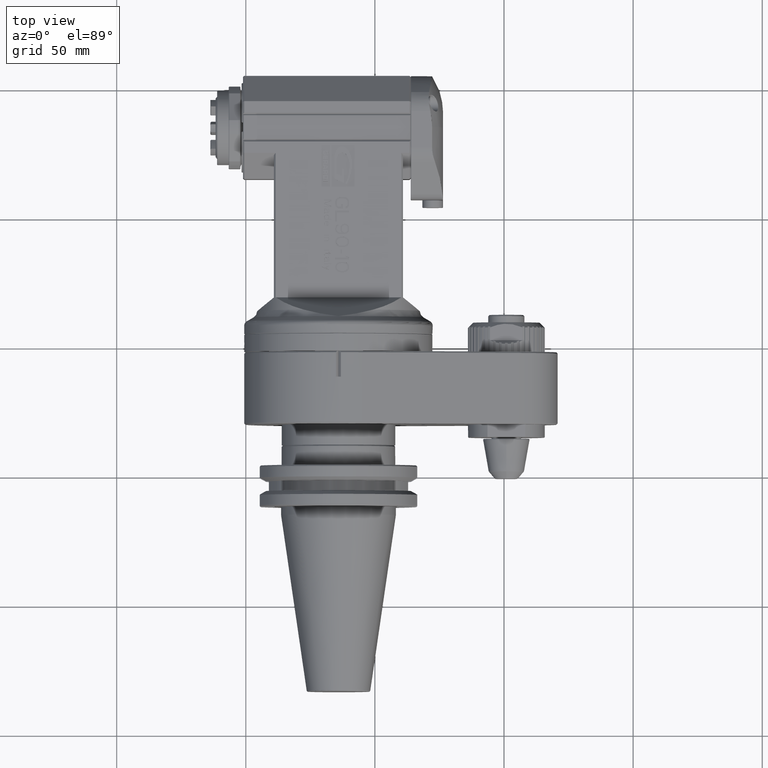
[diagram: clean part render]
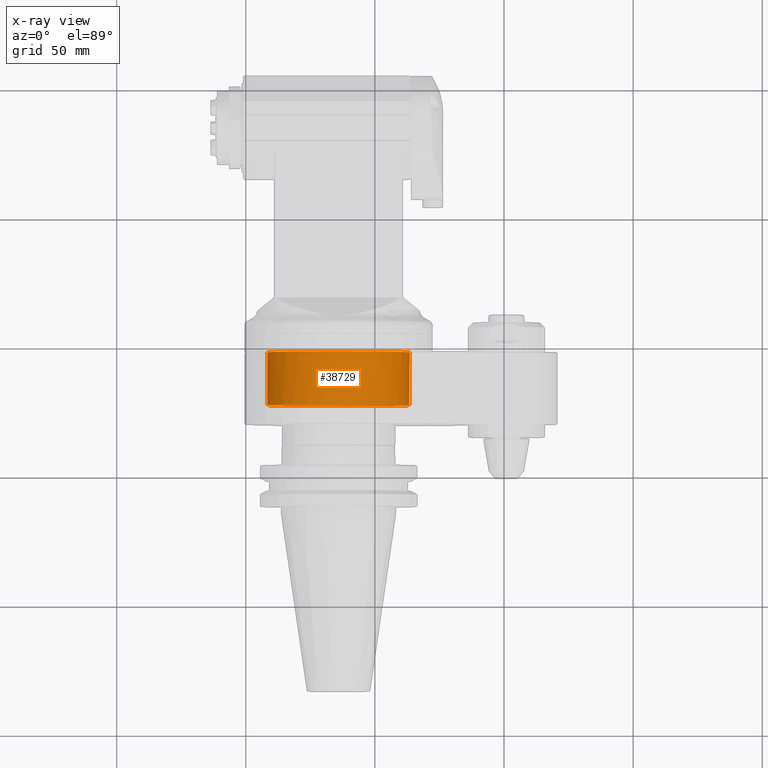
[diagram: x-ray — body ghosted, one internal face saturated and labeled with its STEP entity id]
A machine part, top view, then the same camera in x-ray: the body is ghosted and one INTERNAL B-rep face — a face not visible from any outside direction — is saturated and labeled: STEP entity #38729.
In plain terms, the highlighted cylindrical surface (bore or boss wall) has radius 27.5 mm, axis along (-0, 1, -0).
Its self-contained STEP definition (entity closure, byte-faithful):
#644=CYLINDRICAL_SURFACE('',#40976,27.5);
#1183=CIRCLE('',#40975,27.5);
#1184=CIRCLE('',#40977,27.5);
#1185=CIRCLE('',#40978,27.5);
#1917=FACE_OUTER_BOUND('',#4088,.T.);
#4088=EDGE_LOOP('',(#25956,#25957,#25958,#25959,#25960));
#6796=LINE('',#55678,#11455);
#11455=VECTOR('',#44450,27.5);
#16129=VERTEX_POINT('',#55674);
#16130=VERTEX_POINT('',#55677);
#16131=VERTEX_POINT('',#55679);
#20010=EDGE_CURVE('',#16129,#16129,#1183,.T.);
#20011=EDGE_CURVE('',#16129,#16130,#6796,.T.);
#20012=EDGE_CURVE('',#16131,#16130,#1184,.T.);
#20013=EDGE_CURVE('',#16130,#16131,#1185,.T.);
#25956=ORIENTED_EDGE('',*,*,#20010,.T.);
#25957=ORIENTED_EDGE('',*,*,#20011,.T.);
#25958=ORIENTED_EDGE('',*,*,#20012,.F.);
#25959=ORIENTED_EDGE('',*,*,#20013,.F.);
#25960=ORIENTED_EDGE('',*,*,#20011,.F.);
#38729=ADVANCED_FACE('',(#1917),#644,.T.);
#40975=AXIS2_PLACEMENT_3D('',#55675,#44446,#44447);
#40976=AXIS2_PLACEMENT_3D('',#55676,#44448,#44449);
#40977=AXIS2_PLACEMENT_3D('',#55680,#44451,#44452);
#40978=AXIS2_PLACEMENT_3D('',#55681,#44453,#44454);
#44446=DIRECTION('center_axis',(0.,-1.,0.));
#44447=DIRECTION('ref_axis',(-1.,0.,0.));
#44448=DIRECTION('center_axis',(0.,1.,0.));
#44449=DIRECTION('ref_axis',(1.,0.,0.));
#44450=DIRECTION('',(0.,-1.,0.));
#44451=DIRECTION('center_axis',(0.,-1.,0.));
#44452=DIRECTION('ref_axis',(-1.,0.,0.));
#44453=DIRECTION('center_axis',(0.,-1.,0.));
#44454=DIRECTION('ref_axis',(-1.,0.,0.));
#55674=CARTESIAN_POINT('',(-27.5,20.9,3.36777869765522E-15));
#55675=CARTESIAN_POINT('Origin',(0.,20.9,0.));
#55676=CARTESIAN_POINT('Origin',(0.,-5.395,0.));
#55677=CARTESIAN_POINT('',(-27.5,0.4999870010882,3.36777869765522E-15));
#55678=CARTESIAN_POINT('',(-27.5,-5.395,3.36777869765522E-15));
#55679=CARTESIAN_POINT('',(-2.88062518933945E-13,0.49998700108961,27.4999999999988));
#55680=CARTESIAN_POINT('Origin',(0.,0.4999870010882,0.));
#55681=CARTESIAN_POINT('Origin',(0.,0.4999870010882,0.));